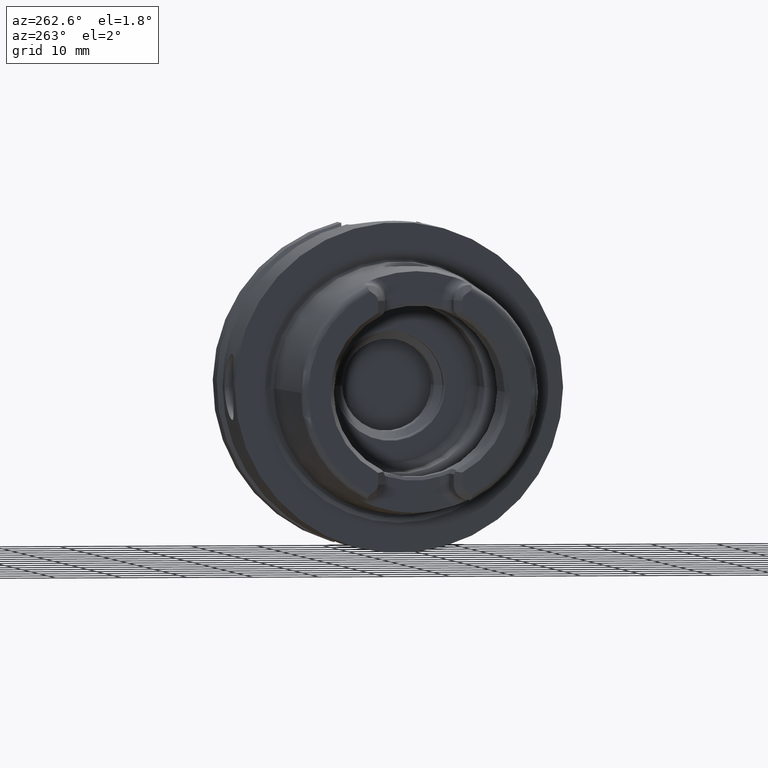
[diagram: clean part render]
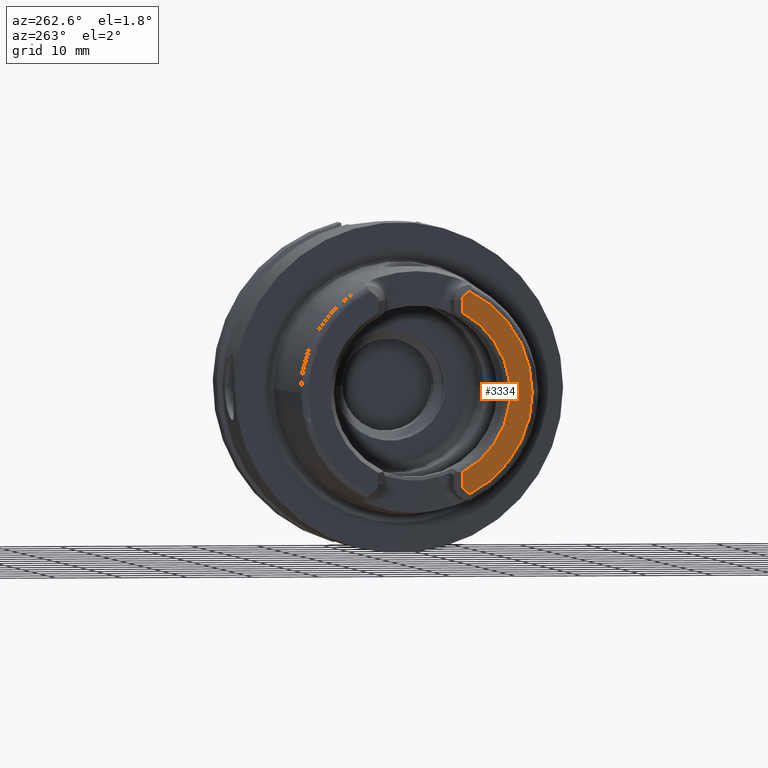
[diagram: same view with one face highlighted and labeled with its STEP entity id]
A machine part, auxiliary view. The second image highlights one B-rep face of the part: STEP entity #3334.
In plain terms, the highlighted planar face has unit normal (1, 0, 0).
Its self-contained STEP definition (entity closure, byte-faithful):
#112=DIRECTION('',(0.E0,0.E0,-1.E0));
#113=VECTOR('',#112,1.794408024424E0);
#114=CARTESIAN_POINT('',(-2.49E1,-6.42E0,-1.208559197558E1));
#115=LINE('',#114,#113);
#116=DIRECTION('',(0.E0,0.E0,1.E0));
#117=VECTOR('',#116,1.794408024424E0);
#118=CARTESIAN_POINT('',(-2.49E1,-6.42E0,1.208559197558E1));
#119=LINE('',#118,#117);
#120=CARTESIAN_POINT('',(-2.49E1,-7.65E0,1.388E1));
#121=DIRECTION('',(1.E0,0.E0,0.E0));
#122=DIRECTION('',(0.E0,1.E0,-1.444192552358E-14));
#123=AXIS2_PLACEMENT_3D('',#120,#121,#122);
#125=DIRECTION('',(0.E0,8.262563907023E-1,-5.632942187025E-1));
#126=VECTOR('',#125,7.112027059277E-1);
#127=CARTESIAN_POINT('',(-2.49E1,-7.544783891853E0,1.529691173314E1));
#128=LINE('',#127,#126);
#129=DIRECTION('',(0.E0,8.262563907023E-1,5.632942187025E-1));
#130=VECTOR('',#129,7.112027059277E-1);
#131=CARTESIAN_POINT('',(-2.49E1,-7.544783891853E0,-1.529691173314E1));
#132=LINE('',#131,#130);
#133=CARTESIAN_POINT('',(-2.49E1,-7.65E0,-1.388E1));
#134=DIRECTION('',(-1.E0,0.E0,0.E0));
#135=DIRECTION('',(0.E0,1.E0,0.E0));
#136=AXIS2_PLACEMENT_3D('',#133,#134,#135);
#207=CARTESIAN_POINT('',(-2.49E1,0.E0,0.E0));
#208=DIRECTION('',(1.E0,0.E0,0.E0));
#209=DIRECTION('',(0.E0,-4.691283988580E-1,8.831299708338E-1));
#210=AXIS2_PLACEMENT_3D('',#207,#208,#209);
#364=CARTESIAN_POINT('',(-2.49E1,0.E0,0.E0));
#365=DIRECTION('',(-1.E0,0.E0,0.E0));
#366=DIRECTION('',(0.E0,-4.423444250631E-1,-8.968452539962E-1));
#367=AXIS2_PLACEMENT_3D('',#364,#365,#366);
#2857=CARTESIAN_POINT('',(-2.49E1,-6.42E0,1.208559197558E1));
#2858=CARTESIAN_POINT('',(-2.49E1,-6.42E0,1.388E1));
#2859=VERTEX_POINT('',#2857);
#2860=VERTEX_POINT('',#2858);
#2861=CARTESIAN_POINT('',(-2.49E1,-6.957148110996E0,1.489629536056E1));
#2862=VERTEX_POINT('',#2861);
#2863=CARTESIAN_POINT('',(-2.49E1,-7.544783891853E0,1.529691173314E1));
#2864=VERTEX_POINT('',#2863);
#2889=CARTESIAN_POINT('',(-2.49E1,-6.42E0,-1.208559197558E1));
#2890=CARTESIAN_POINT('',(-2.49E1,-6.42E0,-1.388E1));
#2891=VERTEX_POINT('',#2889);
#2892=VERTEX_POINT('',#2890);
#2893=CARTESIAN_POINT('',(-2.49E1,-6.957148110996E0,-1.489629536056E1));
#2894=VERTEX_POINT('',#2893);
#2895=CARTESIAN_POINT('',(-2.49E1,-7.544783891853E0,-1.529691173314E1));
#2896=VERTEX_POINT('',#2895);
#3312=CARTESIAN_POINT('',(-2.49E1,0.E0,0.E0));
#3313=DIRECTION('',(1.E0,0.E0,0.E0));
#3314=DIRECTION('',(0.E0,-1.E0,0.E0));
#3315=AXIS2_PLACEMENT_3D('',#3312,#3313,#3314);
#3316=PLANE('',#3315);
#3318=ORIENTED_EDGE('',*,*,#3317,.F.);
#3320=ORIENTED_EDGE('',*,*,#3319,.F.);
#3322=ORIENTED_EDGE('',*,*,#3321,.T.);
#3324=ORIENTED_EDGE('',*,*,#3323,.T.);
#3325=ORIENTED_EDGE('',*,*,#3276,.F.);
#3327=ORIENTED_EDGE('',*,*,#3326,.F.);
#3329=ORIENTED_EDGE('',*,*,#3328,.T.);
#3331=ORIENTED_EDGE('',*,*,#3330,.F.);
#3332=EDGE_LOOP('',(#3318,#3320,#3322,#3324,#3325,#3327,#3329,#3331));
#3333=FACE_OUTER_BOUND('',#3332,.F.);
#3334=ADVANCED_FACE('',(#3333),#3316,.F.);
#124=CIRCLE('',#123,1.23E0);
#137=CIRCLE('',#136,1.23E0);
#211=CIRCLE('',#210,1.368495280957E1);
#368=CIRCLE('',#367,1.705635578153E1);
#3276=EDGE_CURVE('',#2864,#2862,#128,.T.);
#3317=EDGE_CURVE('',#2891,#2892,#115,.T.);
#3319=EDGE_CURVE('',#2859,#2891,#211,.T.);
#3321=EDGE_CURVE('',#2859,#2860,#119,.T.);
#3323=EDGE_CURVE('',#2860,#2862,#124,.T.);
#3326=EDGE_CURVE('',#2896,#2864,#368,.T.);
#3328=EDGE_CURVE('',#2896,#2894,#132,.T.);
#3330=EDGE_CURVE('',#2892,#2894,#137,.T.);